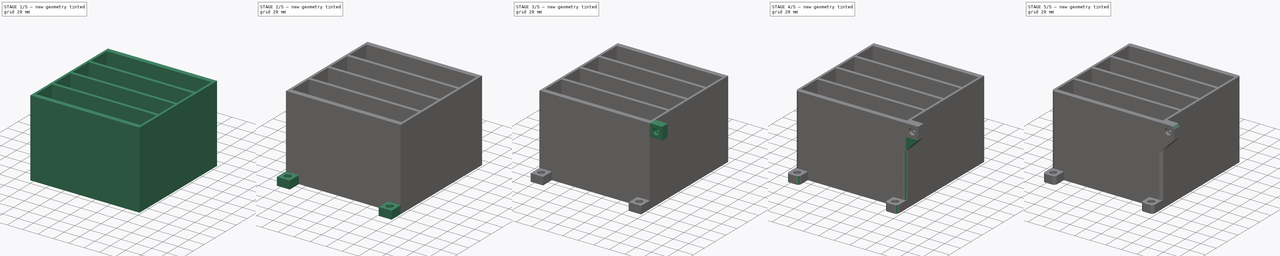
[diagram: build sequence overview — one tinted view per stage of 5, left to right]
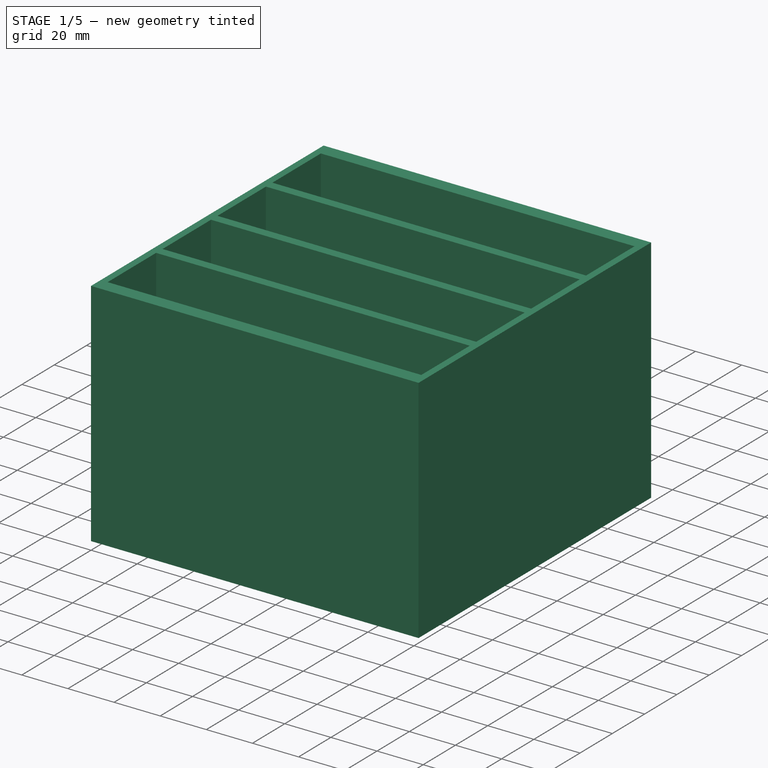
[diagram: stage 1 of 5 — iso view after this stage's code; geometry added in this stage tinted green]
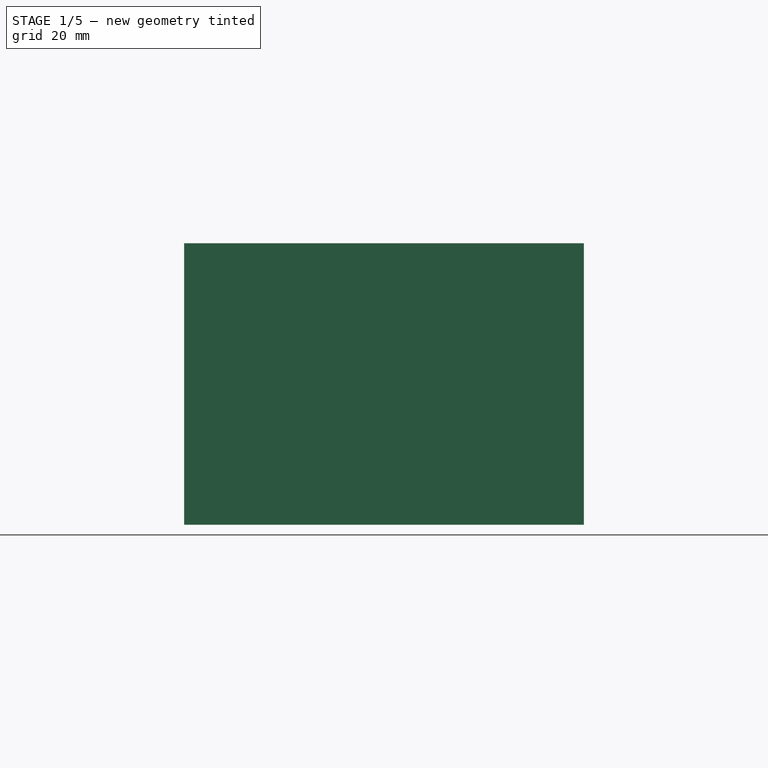
[diagram: stage 1 of 5 — front view after this stage's code; geometry added in this stage tinted green]
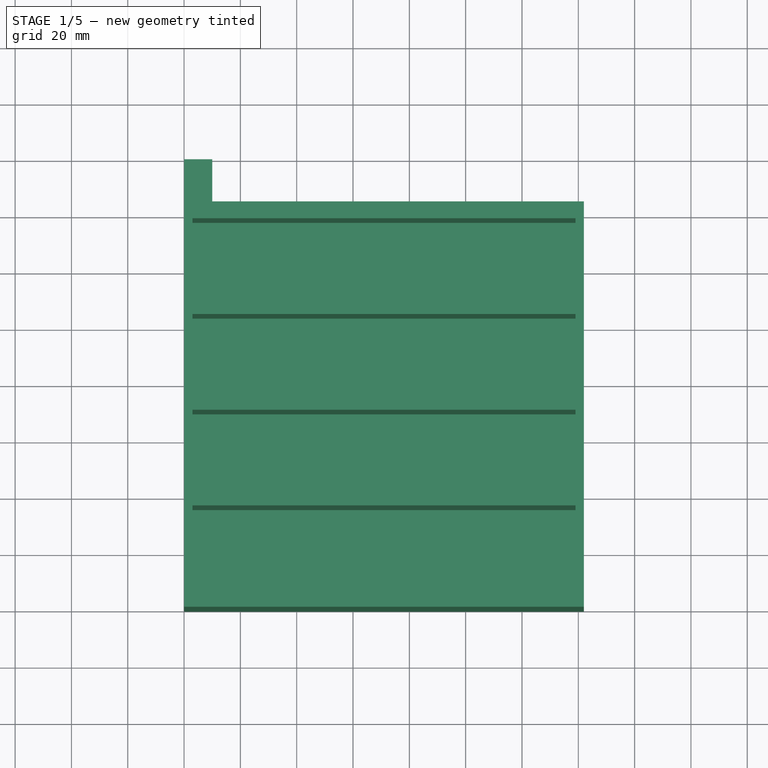
[diagram: stage 1 of 5 — top view after this stage's code; geometry added in this stage tinted green]
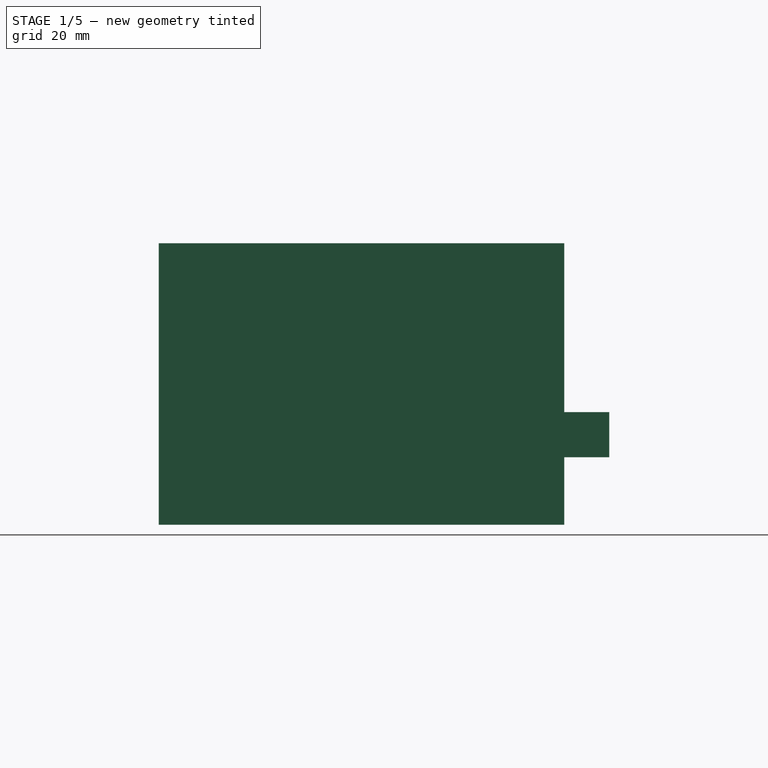
[diagram: stage 1 of 5 — right view after this stage's code; geometry added in this stage tinted green]
FCSTD DOCUMENT  (FreeCAD 0.17R9796 (Git))
Label: batterymount1c
License: All rights reserved
LicenseURL: http://en.wikipedia.org/wiki/All_rights_reserved
objects: Sketcher::SketchObject×12, PartDesign::Pocket×8, PartDesign::Fillet×7, PartDesign::Pad×4, PartDesign::Chamfer×2, PartDesign::Body×1
note: 46 computed .brp shape members not serialized (recipe doc carries the construction recipe); baked Part::Feature solids carry a one-line shape summary decoded from their .brp

FEATURE [Sketcher::SketchObject] Sketch
  MapMode = 5
  Support = -> [XY_Plane]
  sketch-geometry (4):
    g0: LineSegment StartX=0 StartY=144 StartZ=0 EndX=142 EndY=144 EndZ=0
    g1: LineSegment StartX=142 StartY=144 StartZ=0 EndX=142 EndY=0 EndZ=0
    g2: LineSegment StartX=142 StartY=0 StartZ=0 EndX=0 EndY=0 EndZ=0
    g3: LineSegment StartX=0 StartY=0 StartZ=0 EndX=0 EndY=144 EndZ=0
  constraints (11):
    c: Coincident(g0,g1)
    c: Coincident(g1,g2)
    c: Coincident(g2,g3)
    c: Coincident(g3,g0)
    c: Horizontal(g0)
    c: Horizontal(g2)
    c: Vertical(g1)
    c: Vertical(g3)
    c: Coincident(g2,g-1)
    c: DistanceX(g2,g2) = 142
    c: DistanceY(g3,g3) = 144
FEATURE [PartDesign::Pad] Pad
  Length = 100
  Length2 = 100
  Profile = -> Sketch
  Type = 0
FEATURE [Sketcher::SketchObject] Sketch001
  MapMode = 5
  Placement = pos=(0,0,100) rot=(0,0,1;0rad)
  Support = -> [Pad]
  sketch-geometry (16):
    g0: LineSegment StartX=3 StartY=138 StartZ=0 EndX=139 EndY=138 EndZ=0
    g1: LineSegment StartX=139 StartY=138 StartZ=0 EndX=139 EndY=108 EndZ=0
    g2: LineSegment StartX=139 StartY=108 StartZ=0 EndX=3 EndY=108 EndZ=0
    g3: LineSegment StartX=3 StartY=108 StartZ=0 EndX=3 EndY=138 EndZ=0
    g4: LineSegment StartX=3 StartY=104 StartZ=0 EndX=139 EndY=104 EndZ=0
    g5: LineSegment StartX=139 StartY=104 StartZ=0 EndX=139 EndY=74 EndZ=0
    g6: LineSegment StartX=139 StartY=74 StartZ=0 EndX=3 EndY=74 EndZ=0
    g7: LineSegment StartX=3 StartY=74 StartZ=0 EndX=3 EndY=104 EndZ=0
    g8: LineSegment StartX=3 StartY=70 StartZ=0 EndX=139 EndY=70 EndZ=0
    g9: LineSegment StartX=139 StartY=70 StartZ=0 EndX=139 EndY=40 EndZ=0
    g10: LineSegment StartX=139 StartY=40 StartZ=0 EndX=3 EndY=40 EndZ=0
    g11: LineSegment StartX=3 StartY=40 StartZ=0 EndX=3 EndY=70 EndZ=0
    g12: LineSegment StartX=3 StartY=36 StartZ=0 EndX=139 EndY=36 EndZ=0
    g13: LineSegment StartX=139 StartY=36 StartZ=0 EndX=139 EndY=6 EndZ=0
    g14: LineSegment StartX=139 StartY=6 StartZ=0 EndX=3 EndY=6 EndZ=0
    g15: LineSegment StartX=3 StartY=6 StartZ=0 EndX=3 EndY=36 EndZ=0
  constraints (48):
    c: Coincident(g0,g1)
    c: Coincident(g1,g2)
    c: Coincident(g2,g3)
    c: Coincident(g3,g0)
    c: Horizontal(g0)
    c: Horizontal(g2)
    c: Vertical(g1)
    c: Vertical(g3)
    c: Coincident(g4,g5)
    c: Coincident(g5,g6)
    c: Coincident(g6,g7)
    c: Coincident(g7,g4)
    c: Horizontal(g4)
    c: Horizontal(g6)
    c: Vertical(g5)
    c: Vertical(g7)
    c: Coincident(g8,g9)
    c: Coincident(g9,g10)
    c: Coincident(g10,g11)
    c: Coincident(g11,g8)
    c: Horizontal(g8)
    c: Horizontal(g10)
    c: Vertical(g9)
    c: Vertical(g11)
    c: Coincident(g12,g13)
    c: Coincident(g13,g14)
    c: Coincident(g14,g15)
    c: Coincident(g15,g12)
    c: Horizontal(g12)
    c: Horizontal(g14)
    c: Vertical(g13)
    c: Vertical(g15)
    c: DistanceX(g-1,g14) = 3
    c: DistanceX(g14,g14) = 136
    c: DistanceY(g-1,g14) = 6
    c: DistanceY(g15,g15) = 30
    c: DistanceY(g12,g10) = 4
    c: DistanceX(g12,g10) = 0
    c: DistanceX(g10,g10) = 136
    c: DistanceY(g10,g8) = 30
    c: DistanceX(g8,g6) = 0
    c: DistanceY(g8,g6) = 4
    c: DistanceY(g7,g7) = 30
    c: DistanceX(g4,g2) = 0
    c: DistanceY(g4,g2) = 4
    c: DistanceY(g3,g3) = 30
    c: DistanceX(g6,g6) = 136
    c: DistanceX(g2,g2) = 136
FEATURE [PartDesign::Pocket] Pocket
  BaseFeature = -> Pad
  Length = 95
  Profile = -> Sketch001
  Type = 0
FEATURE [Sketcher::SketchObject] Sketch002
  MapMode = 5
  Placement = pos=(0,144,0) rot=(0,0.707107,0.707107;3.14159rad)
  Support = -> [Pocket]
  sketch-geometry (4):
    g0: LineSegment StartX=-10 StartY=40 StartZ=0 EndX=0 EndY=40 EndZ=0
    g1: LineSegment StartX=0 StartY=40 StartZ=0 EndX=0 EndY=24 EndZ=0
    g2: LineSegment StartX=0 StartY=24 StartZ=0 EndX=-10 EndY=24 EndZ=0
    g3: LineSegment StartX=-10 StartY=24 StartZ=0 EndX=-10 EndY=40 EndZ=0
  constraints (12):
    c: Coincident(g0,g1)
    c: Coincident(g1,g2)
    c: Coincident(g2,g3)
    c: Coincident(g3,g0)
    c: Horizontal(g0)
    c: Horizontal(g2)
    c: Vertical(g1)
    c: Vertical(g3)
    c: DistanceX(g2,g2) = 10
    c: DistanceY(g3,g3) = 16
    c: DistanceX(g2,g-1) = 10
    c: DistanceY(g-1,g1) = 24
FEATURE [PartDesign::Pad] Pad001
  BaseFeature = -> Pocket
  Length = 16
  Length2 = 100
  Profile = -> Sketch002
  Type = 0
FEATURE [Sketcher::SketchObject] Sketch003
  MapMode = 5
  Placement = pos=(0,0,0) rot=(0.57735,-0.57735,-0.57735;2.0944rad)
  Support = -> [Pad001]
  sketch-geometry (1):
    g0: Circle CenterX=-152 CenterY=32 CenterZ=0 NormalX=0 NormalY=0 NormalZ=1 Radius=4
  constraints (3):
    c: DistanceY(g-1,g0) = 32
    c: DistanceX(g0,g-1) = 152
    c: Radius(g0) = 4
FEATURE [PartDesign::Pocket] Pocket001
  BaseFeature = -> Pad001
  Length = 4
  Profile = -> Sketch003
  Type = 0
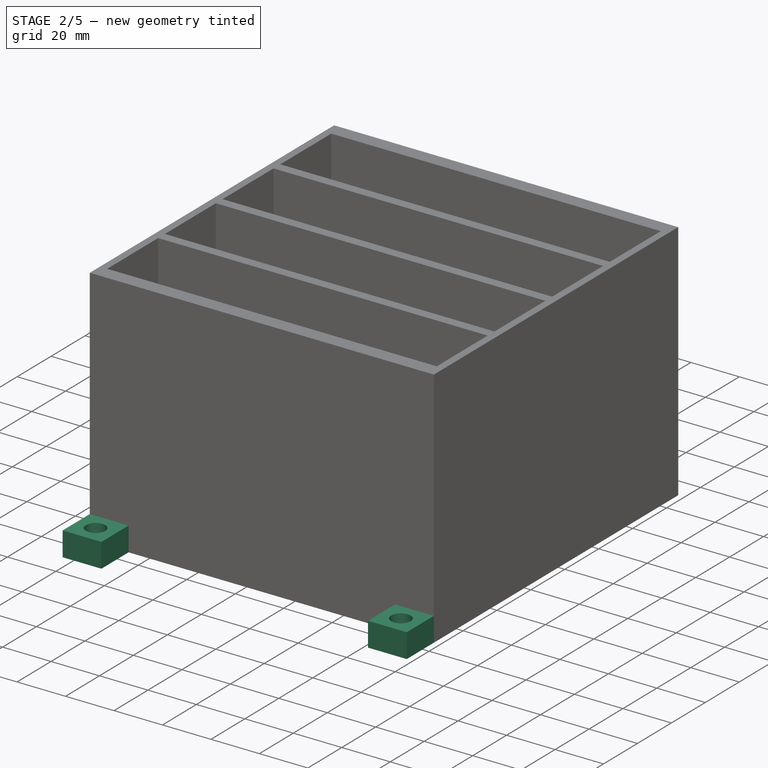
[diagram: stage 2 of 5 — iso view after this stage's code; geometry added in this stage tinted green]
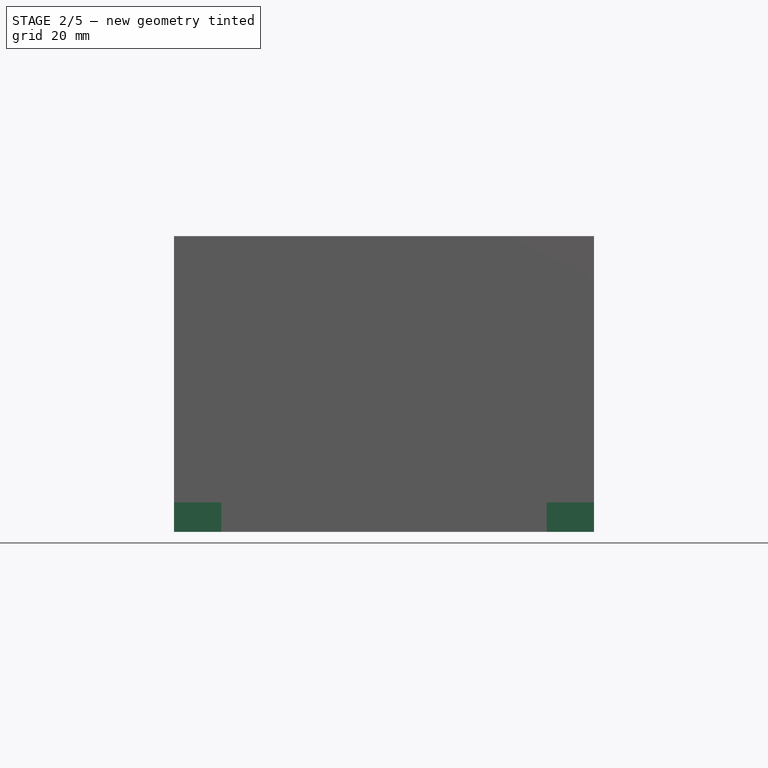
[diagram: stage 2 of 5 — front view after this stage's code; geometry added in this stage tinted green]
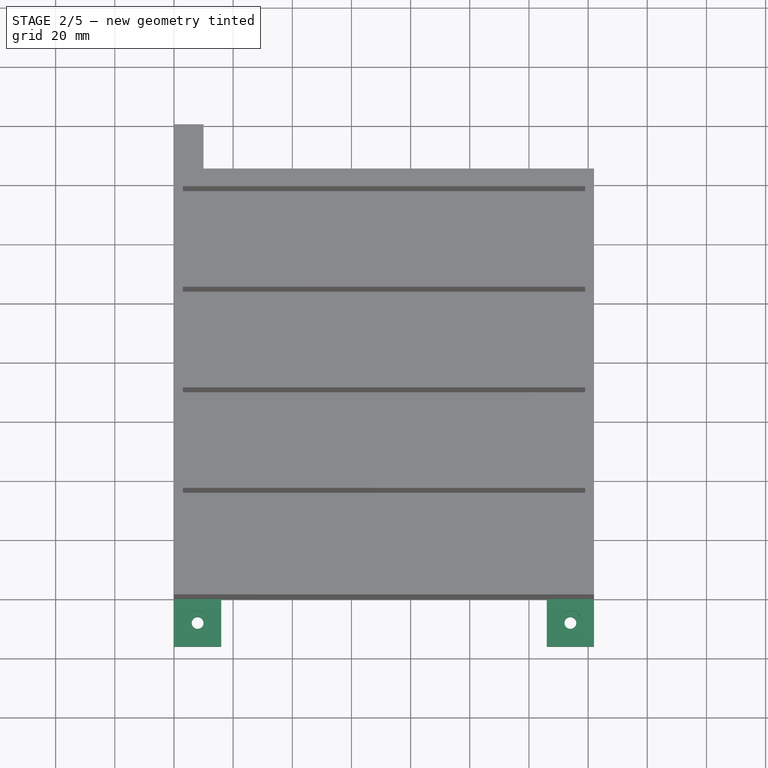
[diagram: stage 2 of 5 — top view after this stage's code; geometry added in this stage tinted green]
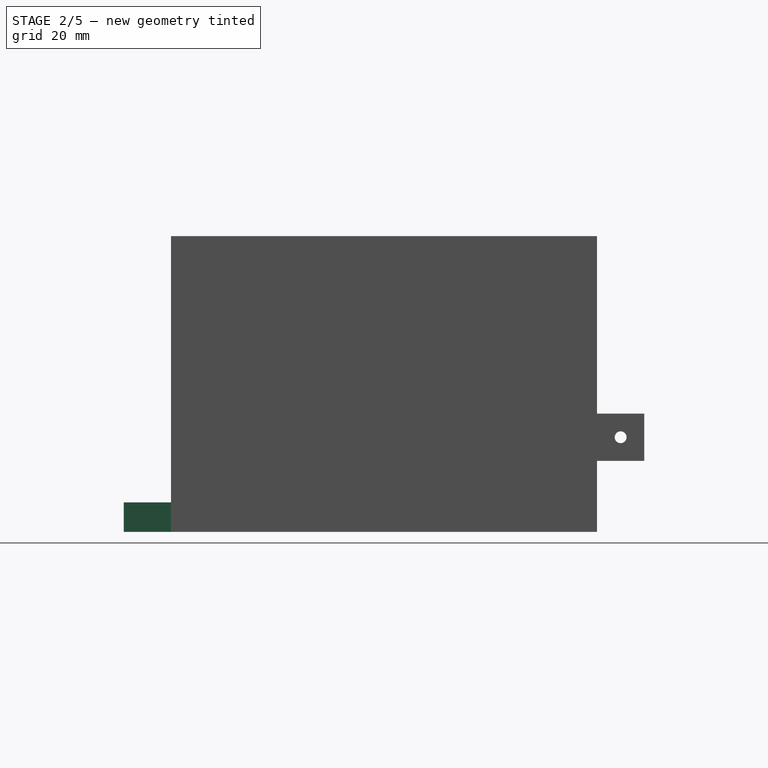
[diagram: stage 2 of 5 — right view after this stage's code; geometry added in this stage tinted green]
FEATURE [Sketcher::SketchObject] Sketch004
  MapMode = 5
  Placement = pos=(4,0,0) rot=(0.57735,-0.57735,-0.57735;2.0944rad)
  Support = -> [Pocket001]
  sketch-geometry (1):
    g0: Circle CenterX=-152 CenterY=32 CenterZ=0 NormalX=0 NormalY=0 NormalZ=1 Radius=2
  constraints (3):
    c: DistanceX(g0,g-1) = 152
    c: DistanceY(g-1,g0) = 32
    c: Radius(g0) = 2
FEATURE [PartDesign::Pocket] Pocket002
  BaseFeature = -> Pocket001
  Length = 6
  Profile = -> Sketch004
  Type = 0
FEATURE [Sketcher::SketchObject] Sketch005
  MapMode = 5
  Placement = pos=(0,0,0) rot=(1,0,0;1.5708rad)
  Support = -> [Pocket002]
  sketch-geometry (8):
    g0: LineSegment StartX=0 StartY=10 StartZ=0 EndX=16 EndY=10 EndZ=0
    g1: LineSegment StartX=16 StartY=10 StartZ=0 EndX=16 EndY=0 EndZ=0
    g2: LineSegment StartX=16 StartY=0 StartZ=0 EndX=0 EndY=0 EndZ=0
    g3: LineSegment StartX=0 StartY=0 StartZ=0 EndX=0 EndY=10 EndZ=0
    g4: LineSegment StartX=126 StartY=10 StartZ=0 EndX=142 EndY=10 EndZ=0
    g5: LineSegment StartX=142 StartY=10 StartZ=0 EndX=142 EndY=0 EndZ=0
    g6: LineSegment StartX=142 StartY=0 StartZ=0 EndX=126 EndY=0 EndZ=0
    g7: LineSegment StartX=126 StartY=0 StartZ=0 EndX=126 EndY=10 EndZ=0
  constraints (23):
    c: Coincident(g0,g1)
    c: Coincident(g1,g2)
    c: Coincident(g2,g3)
    c: Coincident(g3,g0)
    c: Horizontal(g0)
    c: Horizontal(g2)
    c: Vertical(g1)
    c: Vertical(g3)
    c: DistanceY(g3,g3) = 10
    c: DistanceX(g0,g0) = 16
    c: Coincident(g2,g-1)
    c: Coincident(g4,g5)
    c: Coincident(g5,g6)
    c: Coincident(g6,g7)
    c: Coincident(g7,g4)
    c: Horizontal(g4)
    c: Horizontal(g6)
    c: Vertical(g5)
    c: Vertical(g7)
    c: DistanceX(g4,g4) = 16
    c: DistanceY(g7,g7) = 10
    c: DistanceX(g-1,g5) = 142
    c: DistanceY(g-1,g6) = 0
FEATURE [PartDesign::Pad] Pad002
  BaseFeature = -> Pocket002
  Length = 16
  Length2 = 100
  Profile = -> Sketch005
  Type = 0
FEATURE [Sketcher::SketchObject] Sketch006
  MapMode = 5
  Placement = pos=(0,0,10) rot=(0,0,1;0rad)
  Support = -> [Pad002]
  sketch-geometry (2):
    g0: Circle CenterX=8 CenterY=-8 CenterZ=0 NormalX=0 NormalY=0 NormalZ=1 Radius=4
    g1: Circle CenterX=134 CenterY=-8 CenterZ=0 NormalX=0 NormalY=0 NormalZ=1 Radius=4
  constraints (6):
    c: DistanceY(g0,g-1) = 8
    c: DistanceY(g0,g1) = 0
    c: DistanceX(g-1,g0) = 8
    c: DistanceX(g-1,g1) = 134
    c: Radius(g0) = 4
    c: Radius(g1) = 4
FEATURE [PartDesign::Pocket] Pocket003
  BaseFeature = -> Pad002
  Length = 4
  Profile = -> Sketch006
  Type = 0
FEATURE [Sketcher::SketchObject] Sketch007
  MapMode = 5
  Placement = pos=(0,0,6) rot=(0,0,1;0rad)
  Support = -> [Pocket003]
  sketch-geometry (2):
    g0: Circle CenterX=8 CenterY=-8 CenterZ=0 NormalX=0 NormalY=0 NormalZ=1 Radius=2
    g1: Circle CenterX=134 CenterY=-8 CenterZ=0 NormalX=0 NormalY=0 NormalZ=1 Radius=2
  constraints (6):
    c: DistanceY(g0,g-1) = 8
    c: DistanceX(g0) = 8
    c: DistanceX(g-1,g1) = 134
    c: DistanceY(g0,g1) = 0
    c: Radius(g1) = 2
    c: Radius(g0) = 2
FEATURE [PartDesign::Pocket] Pocket004
  BaseFeature = -> Pocket003
  Length = 6
  Profile = -> Sketch007
  Type = 0
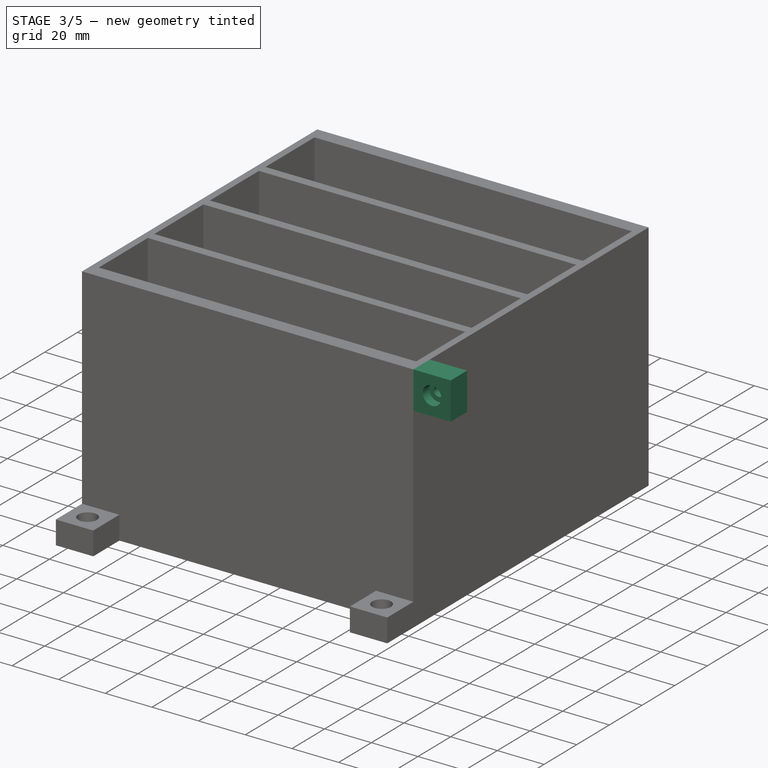
[diagram: stage 3 of 5 — iso view after this stage's code; geometry added in this stage tinted green]
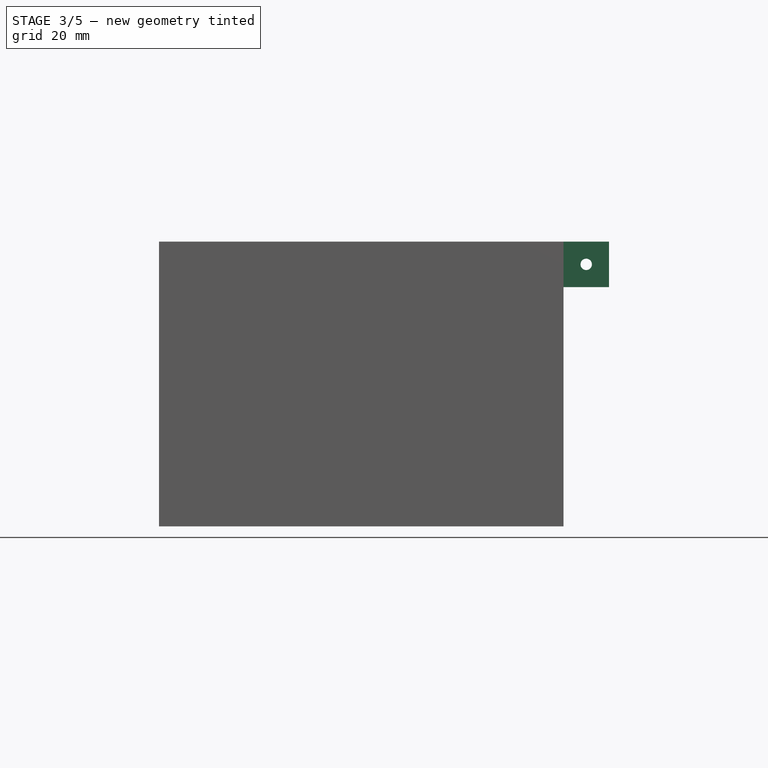
[diagram: stage 3 of 5 — front view after this stage's code; geometry added in this stage tinted green]
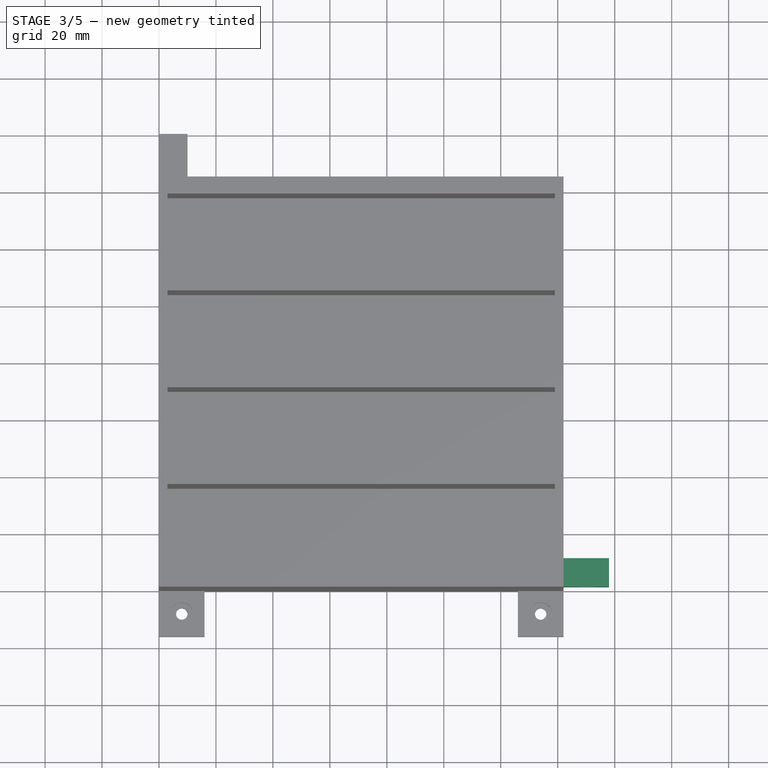
[diagram: stage 3 of 5 — top view after this stage's code; geometry added in this stage tinted green]
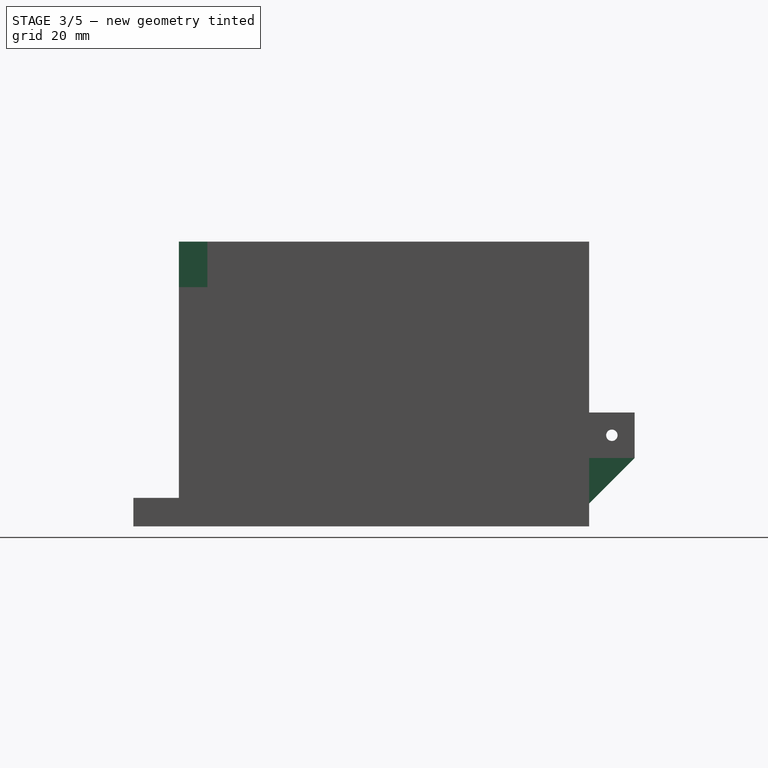
[diagram: stage 3 of 5 — right view after this stage's code; geometry added in this stage tinted green]
FEATURE [Sketcher::SketchObject] Sketch008
  MapMode = 5
  Placement = pos=(0,0,0) rot=(0.57735,-0.57735,-0.57735;2.0944rad)
  Support = -> [Pocket004]
  sketch-geometry (3):
    g0: LineSegment StartX=-144 StartY=6 StartZ=0 EndX=-144 EndY=0 EndZ=0
    g1: LineSegment StartX=-144 StartY=0 StartZ=0 EndX=-138 EndY=0 EndZ=0
    g2: LineSegment StartX=-138 StartY=0 StartZ=0 EndX=-144 EndY=6 EndZ=0
  constraints (9):
    c: Coincident(g0,g1)
    c: Coincident(g1,g2)
    c: Coincident(g2,g0)
    c: Horizontal(g1)
    c: Vertical(g0)
    c: DistanceX(g1,g1) = 6
    c: DistanceY(g0,g0) = 6
    c: DistanceY(g-1,g0) = 0
    c: DistanceX(g0,g-1) = 144
FEATURE [PartDesign::Pocket] Pocket005
  BaseFeature = -> Pocket004
  Length = 22
  Profile = -> Sketch008
  Type = 0
FEATURE [Sketcher::SketchObject] Sketch009
  MapMode = 5
  Placement = pos=(142,0,0) rot=(0.57735,0.57735,0.57735;2.0944rad)
  Support = -> [Pocket005]
  sketch-geometry (4):
    g0: LineSegment StartX=0 StartY=100 StartZ=0 EndX=10 EndY=100 EndZ=0
    g1: LineSegment StartX=10 StartY=100 StartZ=0 EndX=10 EndY=84 EndZ=0
    g2: LineSegment StartX=10 StartY=84 StartZ=0 EndX=0 EndY=84 EndZ=0
    g3: LineSegment StartX=0 StartY=84 StartZ=0 EndX=0 EndY=100 EndZ=0
  constraints (12):
    c: Coincident(g0,g1)
    c: Coincident(g1,g2)
    c: Coincident(g2,g3)
    c: Coincident(g3,g0)
    c: Horizontal(g0)
    c: Horizontal(g2)
    c: Vertical(g1)
    c: Vertical(g3)
    c: DistanceX(g0,g0) = 10
    c: DistanceY(g1,g1) = 16
    c: DistanceY(g-1,g0) = 100
    c: DistanceX(g-1,g2) = 0
FEATURE [PartDesign::Pad] Pad003
  BaseFeature = -> Pocket005
  Length = 16
  Length2 = 100
  Profile = -> Sketch009
  Type = 0
FEATURE [Sketcher::SketchObject] Sketch010
  MapMode = 5
  Placement = pos=(0,0,0) rot=(1,0,0;1.5708rad)
  Support = -> [Pad003]
  sketch-geometry (1):
    g0: Circle CenterX=150 CenterY=92 CenterZ=0 NormalX=0 NormalY=0 NormalZ=1 Radius=4
  constraints (3):
    c: DistanceX(g-1,g0) = 150
    c: DistanceY(g-1,g0) = 92
    c: Radius(g0) = 4
FEATURE [PartDesign::Pocket] Pocket006
  BaseFeature = -> Pad003
  Length = 4
  Profile = -> Sketch010
  Type = 0
FEATURE [Sketcher::SketchObject] Sketch011
  MapMode = 5
  Placement = pos=(0,4,0) rot=(1,0,0;1.5708rad)
  Support = -> [Pocket006]
  sketch-geometry (1):
    g0: Circle CenterX=150 CenterY=92 CenterZ=0 NormalX=0 NormalY=0 NormalZ=1 Radius=2
  constraints (3):
    c: DistanceY(g-1,g0) = 92
    c: DistanceX(g-1,g0) = 150
    c: Radius(g0) = 2
FEATURE [PartDesign::Pocket] Pocket007
  BaseFeature = -> Pocket006
  Length = 6
  Profile = -> Sketch011
  Type = 0
FEATURE [PartDesign::Chamfer] Chamfer
  Base = -> Pocket007 [Edge7]
  BaseFeature = -> Pocket007
  Size = 15.98
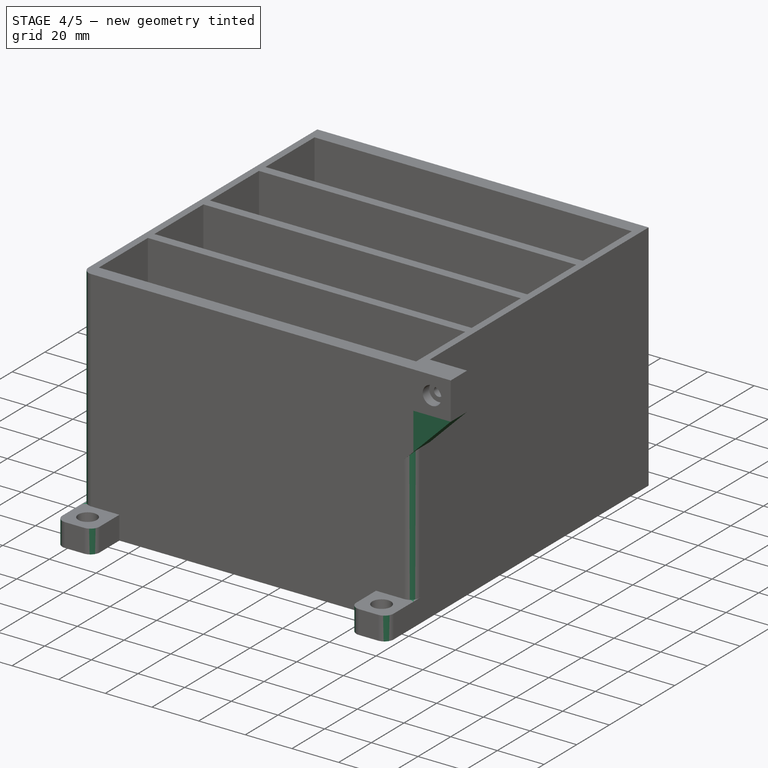
[diagram: stage 4 of 5 — iso view after this stage's code; geometry added in this stage tinted green]
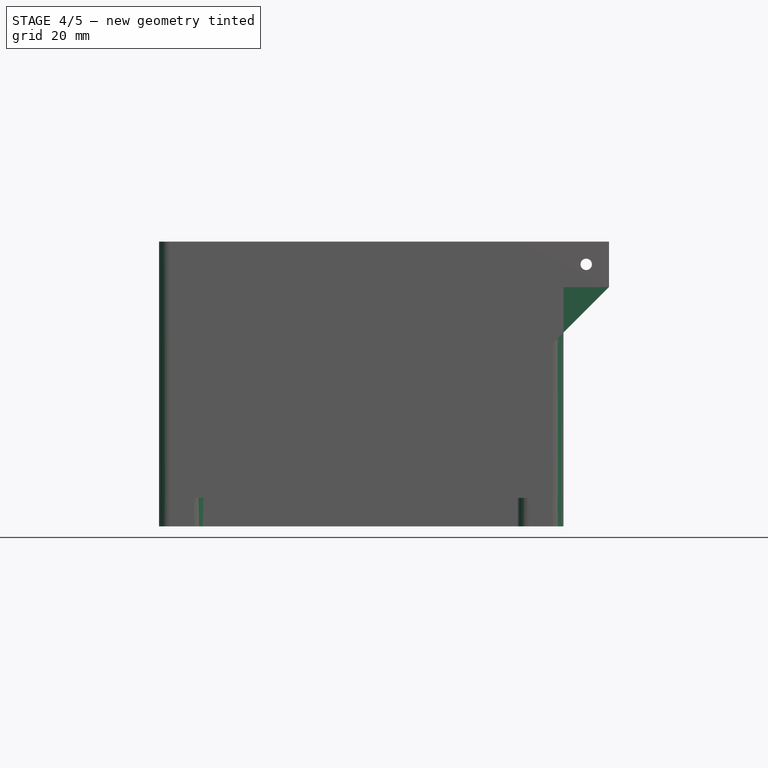
[diagram: stage 4 of 5 — front view after this stage's code; geometry added in this stage tinted green]
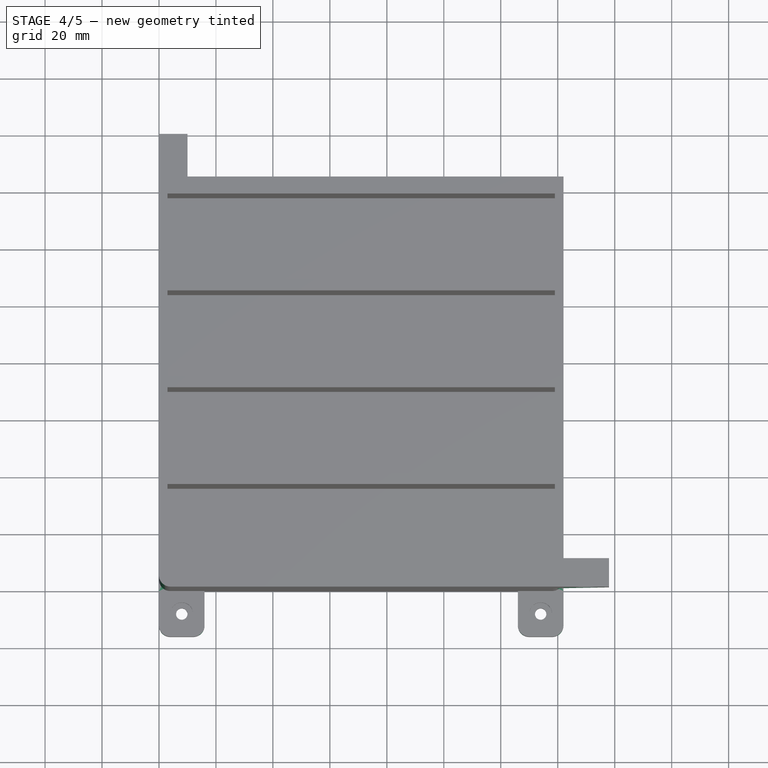
[diagram: stage 4 of 5 — top view after this stage's code; geometry added in this stage tinted green]
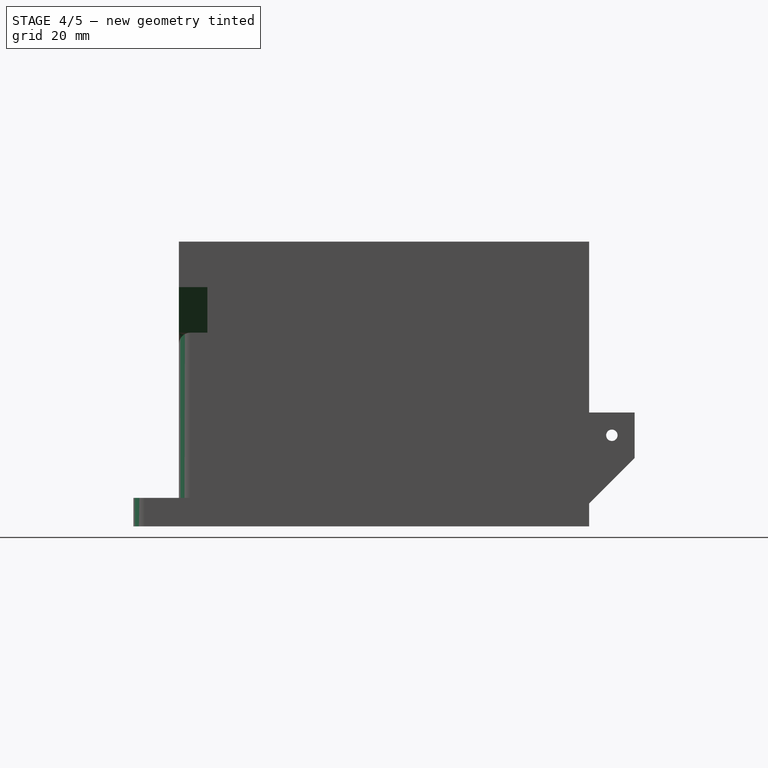
[diagram: stage 4 of 5 — right view after this stage's code; geometry added in this stage tinted green]
FEATURE [PartDesign::Chamfer] Chamfer001
  Base = -> Chamfer [Edge37]
  BaseFeature = -> Chamfer
  Size = 15.98
FEATURE [PartDesign::Fillet] Fillet
  Base = -> Chamfer001 [Edge15]
  BaseFeature = -> Chamfer001
  Radius = 4
FEATURE [PartDesign::Fillet] Fillet001
  Base = -> Fillet [Edge123,Edge63,Edge44,Edge118]
  BaseFeature = -> Fillet
  Radius = 4
FEATURE [PartDesign::Fillet] Fillet002
  Base = -> Fillet001 [Edge19]
  BaseFeature = -> Fillet001
  Radius = 4
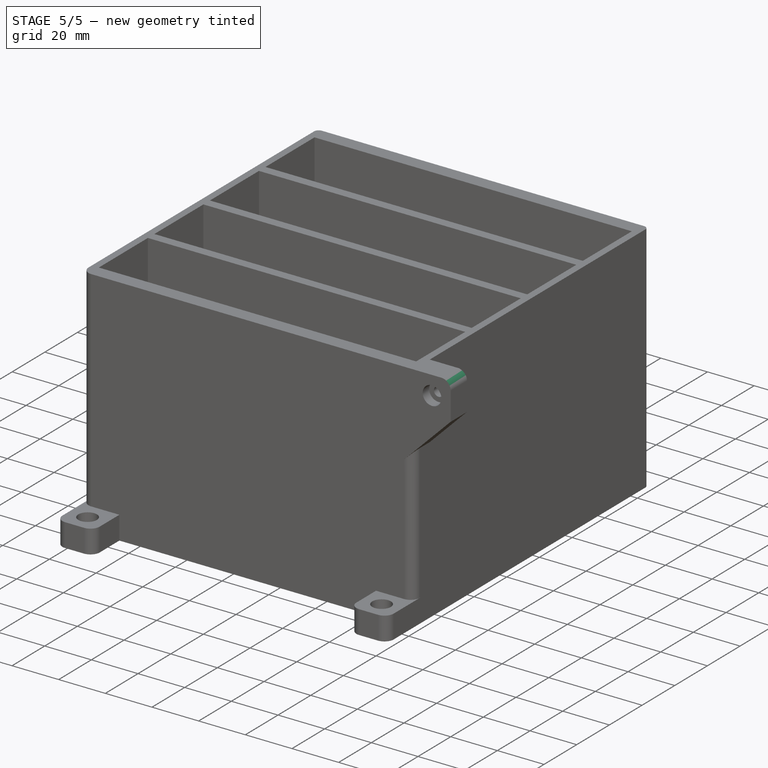
[diagram: stage 5 of 5 — iso view after this stage's code; geometry added in this stage tinted green]
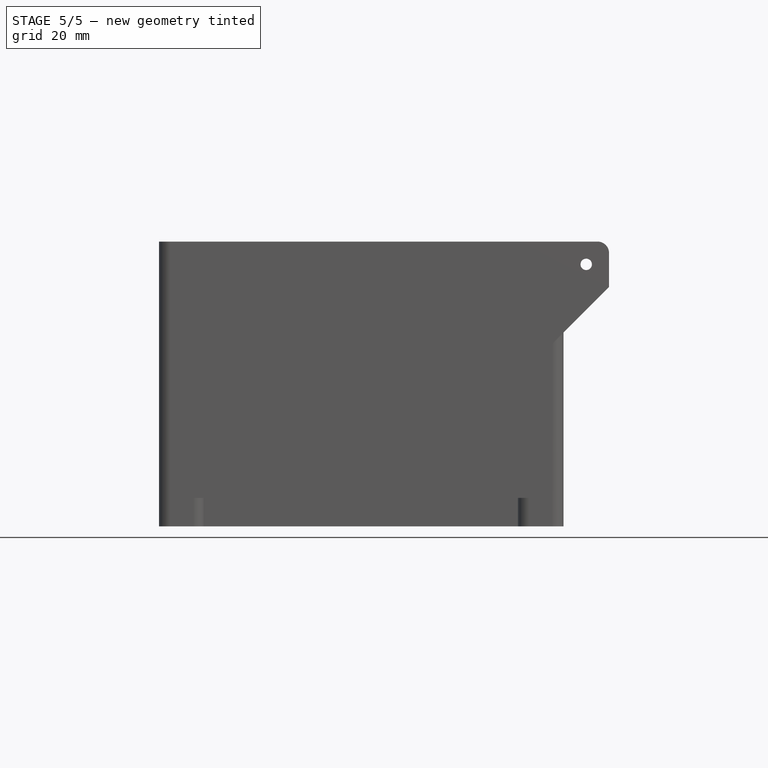
[diagram: stage 5 of 5 — front view after this stage's code; geometry added in this stage tinted green]
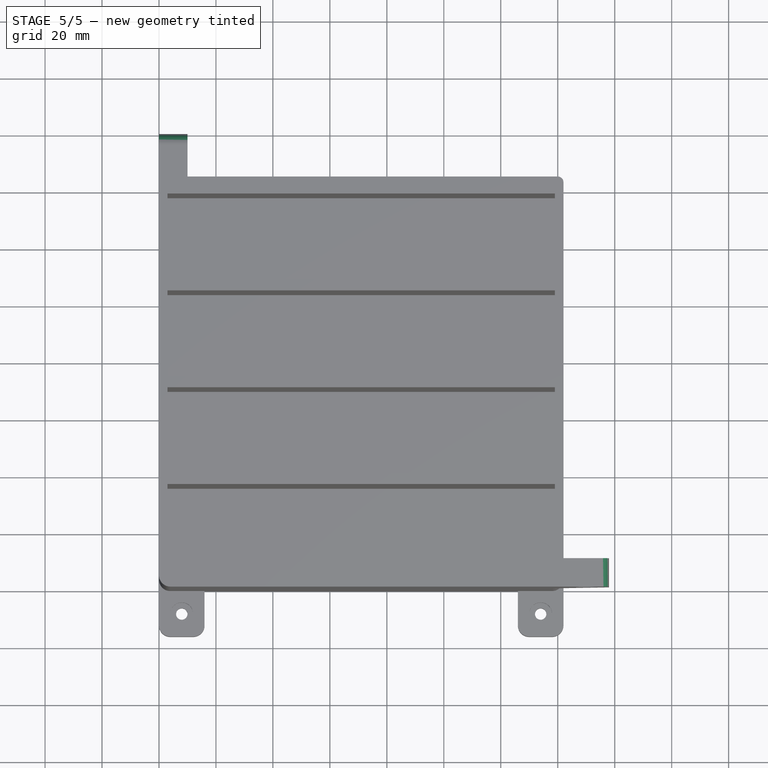
[diagram: stage 5 of 5 — top view after this stage's code; geometry added in this stage tinted green]
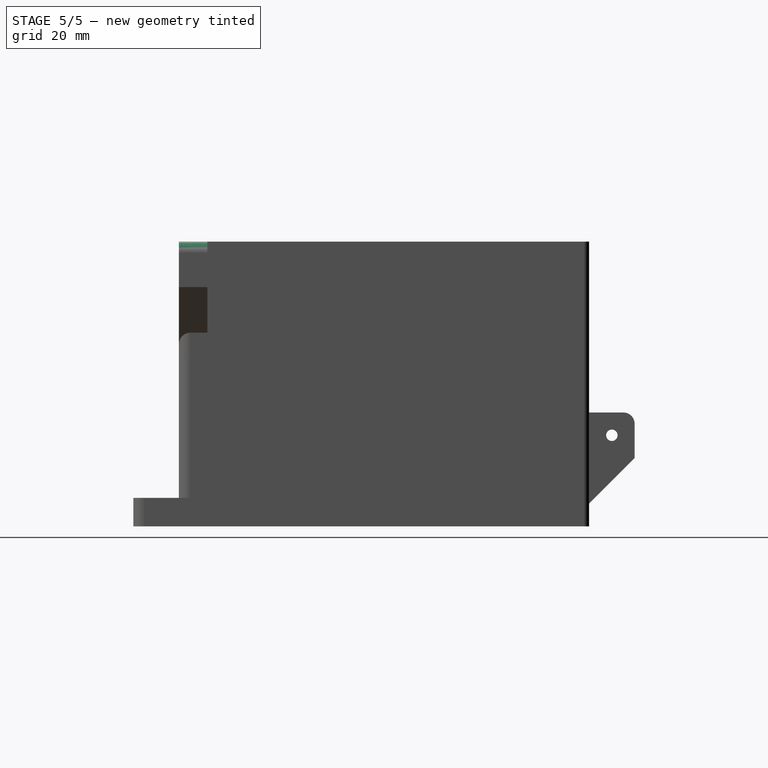
[diagram: stage 5 of 5 — right view after this stage's code; geometry added in this stage tinted green]
FEATURE [PartDesign::Fillet] Fillet003
  Base = -> Fillet002 [Edge108]
  BaseFeature = -> Fillet002
  Radius = 4
FEATURE [PartDesign::Fillet] Fillet004
  Base = -> Fillet003 [Edge88]
  BaseFeature = -> Fillet003
  Radius = 2
FEATURE [PartDesign::Fillet] Fillet005
  Base = -> Fillet004 [Edge41]
  BaseFeature = -> Fillet004
  Radius = 2
FEATURE [PartDesign::Fillet] Fillet006
  Base = -> Fillet005 [Edge105]
  BaseFeature = -> Fillet005
  Radius = 4
FEATURE [PartDesign::Body] Body
  Group = -> [Sketch,Pad,Sketch001,Pocket,Sketch002,Pad001,Sketch003,Pocket001,Sketch004,Pocket002,Sketch005,Pad002,Sketch006,Pocket003,Sketch007,Pocket004,Sketch008,Pocket005,Sketch009,Pad003,Sketch010,Pocket006,Sketch011,Pocket007,Chamfer,Chamfer001,Fillet,Fillet001,Fillet002,Fillet003,Fillet004,Fillet005,Fillet006]
  Origin = -> BodyOrigin
  Tip = -> Fillet006
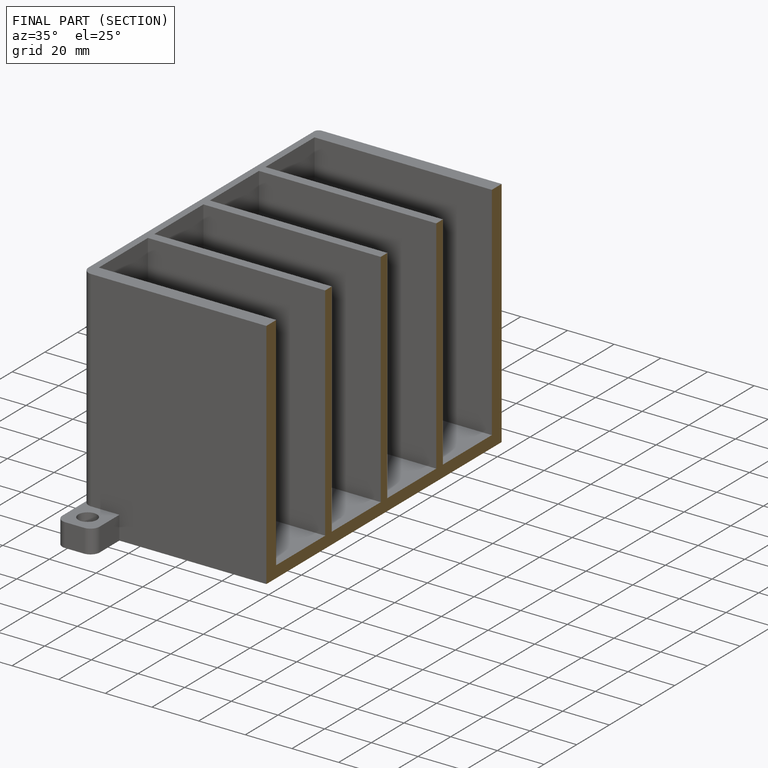
[diagram: finished part — half-section view (interior)]
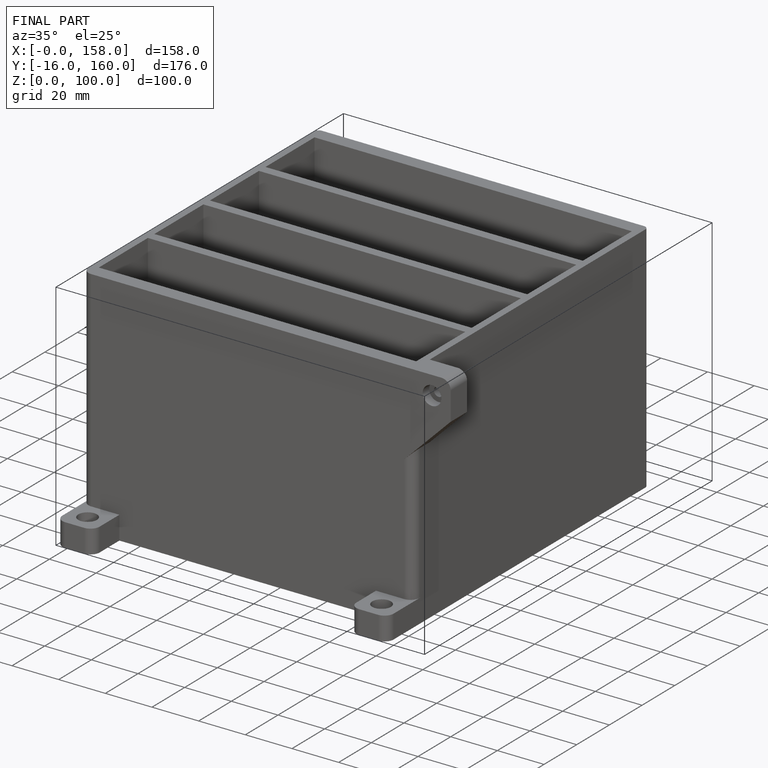
[diagram: finished part — iso view with bounding-box wireframe]
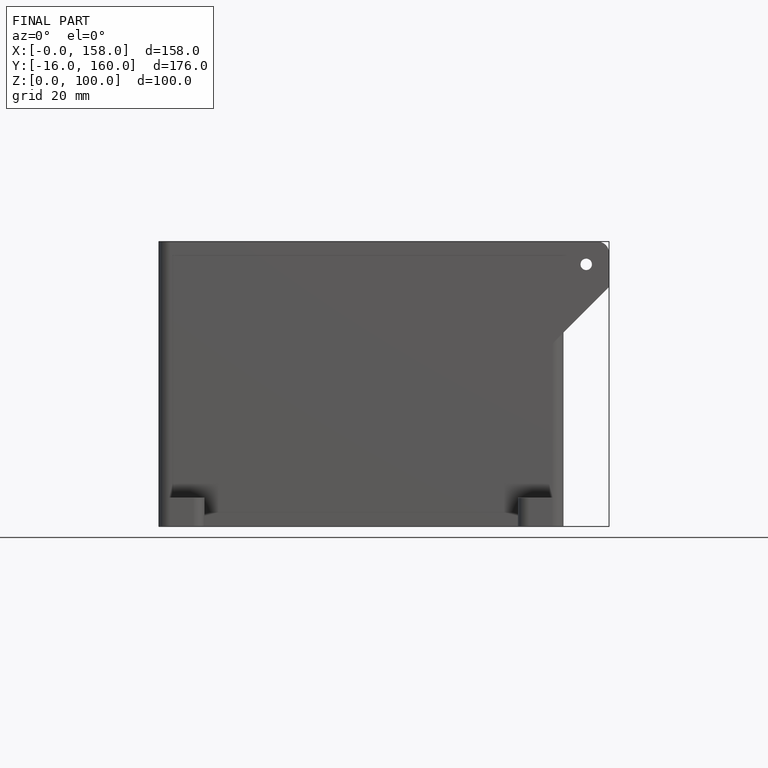
[diagram: finished part — front view with bounding-box wireframe]
